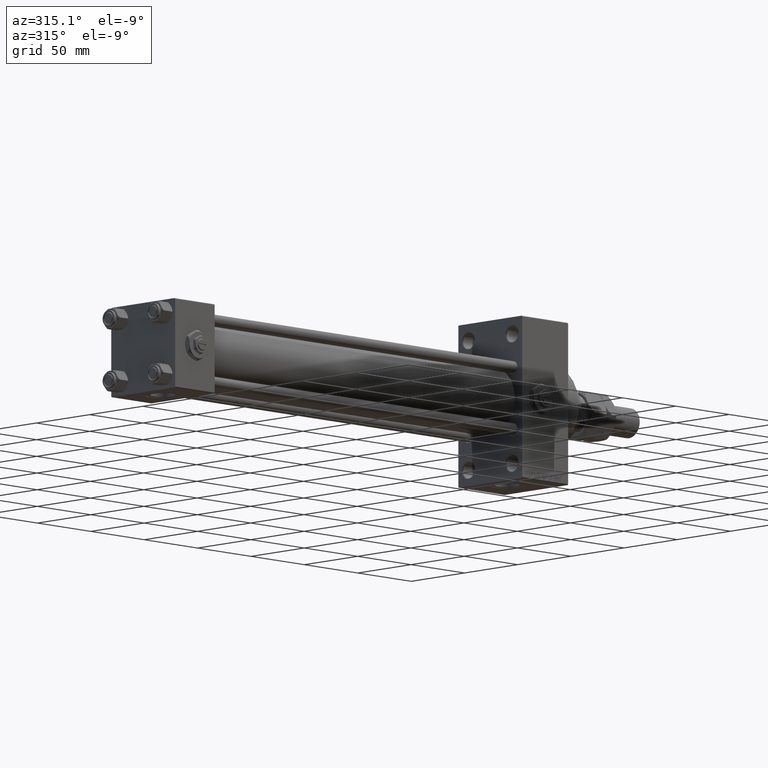
[diagram: clean part render]
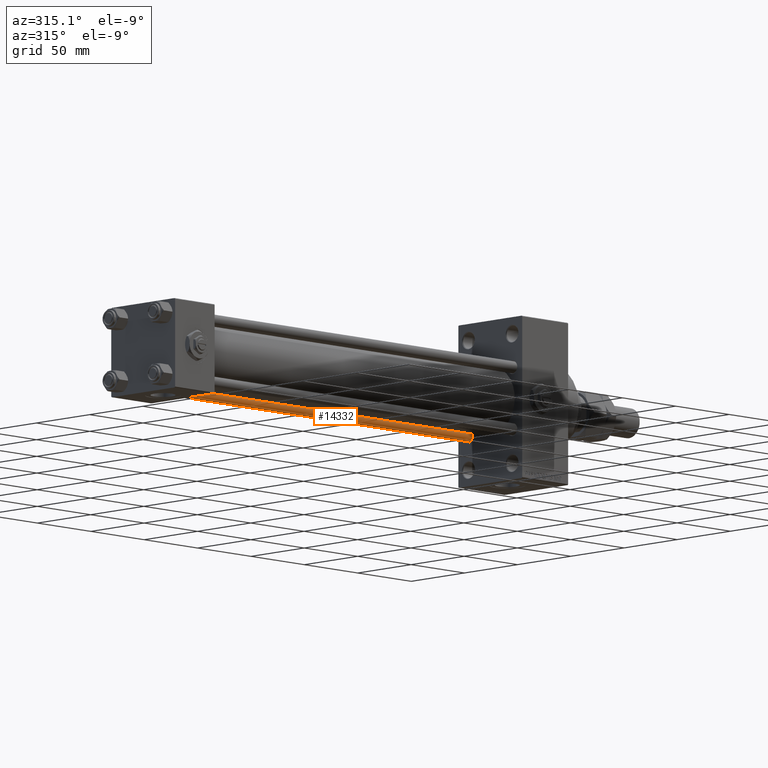
[diagram: same view with one face highlighted and labeled with its STEP entity id]
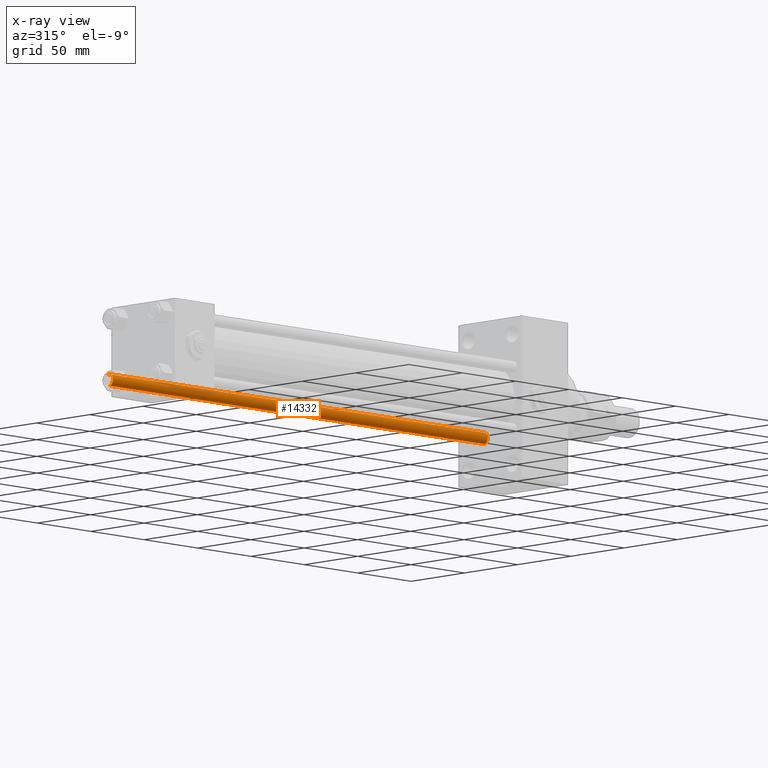
[diagram: x-ray of the same camera — body ghosted, the highlighted face saturated]
A machine part, auxiliary view. The second image highlights one B-rep face of the part: STEP entity #14332.
The next image is the same camera in x-ray: the body ghosted, the highlighted face saturated — about 6% of this face is hidden behind the body in this view.
In plain terms, the highlighted cylindrical surface (edge-blend (fillet) strip) has radius 4 mm, axis along (1, -0, 0).
Its self-contained STEP definition (entity closure, byte-faithful):
#6041 = CARTESIAN_POINT ( 'NONE',  ( -4.000000000000000000, 0.000000000000000000, 0.5000000000000004441 ) ) ;
#6139 = DIRECTION ( 'NONE',  ( -1.000000000000000000, 0.000000000000000000, 0.000000000000000000 ) ) ;
#7825 = CARTESIAN_POINT ( 'NONE',  ( 4.000000000000000000, 4.898587196589412829E-16, 0.5000000000000004441 ) ) ;
#7914 = DIRECTION ( 'NONE',  ( 1.000000000000000000, 0.000000000000000000, 0.000000000000000000 ) ) ;
#9074 = AXIS2_PLACEMENT_3D ( 'NONE', #37041, #13124, #6139 ) ;
#9806 = DIRECTION ( 'NONE',  ( -0.000000000000000000, -0.000000000000000000, -1.000000000000000000 ) ) ;
#11294 = EDGE_CURVE ( 'NONE', #16237, #45612, #21893, .T. ) ;
#13124 = DIRECTION ( 'NONE',  ( -0.000000000000000000, -0.000000000000000000, -1.000000000000000000 ) ) ;
#14332 = ADVANCED_FACE ( 'NONE', ( #29312 ), #21598, .T. ) ;
#15886 = LINE ( 'NONE', #43410, #25463 ) ;
#16237 = VERTEX_POINT ( 'NONE', #38001 ) ;
#17432 = CARTESIAN_POINT ( 'NONE',  ( 4.000000000000000000, 4.898587196589412829E-16, 351.5000000000000000 ) ) ;
#18242 = VERTEX_POINT ( 'NONE', #17432 ) ;
#19765 = DIRECTION ( 'NONE',  ( 0.000000000000000000, 0.000000000000000000, -1.000000000000000000 ) ) ;
#19945 = VERTEX_POINT ( 'NONE', #7825 ) ;
#21034 = DIRECTION ( 'NONE',  ( 1.000000000000000000, 0.000000000000000000, 0.000000000000000000 ) ) ;
#21598 = CYLINDRICAL_SURFACE ( 'NONE', #9074, 4.000000000000000000 ) ;
#21893 = LINE ( 'NONE', #30114, #31106 ) ;
#22504 = EDGE_CURVE ( 'NONE', #18242, #16237, #33565, .T. ) ;
#22914 = ORIENTED_EDGE ( 'NONE', *, *, #22504, .T. ) ;
#25463 = VECTOR ( 'NONE', #39038, 1000.000000000000000 ) ;
#26445 = ORIENTED_EDGE ( 'NONE', *, *, #26612, .F. ) ;
#26612 = EDGE_CURVE ( 'NONE', #18242, #19945, #15886, .T. ) ;
#26797 = ORIENTED_EDGE ( 'NONE', *, *, #27339, .T. ) ;
#27339 = EDGE_CURVE ( 'NONE', #45612, #19945, #36189, .T. ) ;
#28799 = AXIS2_PLACEMENT_3D ( 'NONE', #28998, #32868, #21034 ) ;
#28998 = CARTESIAN_POINT ( 'NONE',  ( 0.000000000000000000, 0.000000000000000000, 0.5000000000000004441 ) ) ;
#29312 = FACE_OUTER_BOUND ( 'NONE', #39458, .T. ) ;
#30114 = CARTESIAN_POINT ( 'NONE',  ( -4.000000000000000000, 0.000000000000000000, 352.0000000000000000 ) ) ;
#31081 = AXIS2_PLACEMENT_3D ( 'NONE', #39825, #19765, #7914 ) ;
#31106 = VECTOR ( 'NONE', #9806, 1000.000000000000000 ) ;
#32868 = DIRECTION ( 'NONE',  ( -0.000000000000000000, -0.000000000000000000, 1.000000000000000000 ) ) ;
#33565 = CIRCLE ( 'NONE', #31081, 4.000000000000000000 ) ;
#36189 = CIRCLE ( 'NONE', #28799, 4.000000000000000000 ) ;
#37041 = CARTESIAN_POINT ( 'NONE',  ( 0.000000000000000000, 0.000000000000000000, 352.0000000000000000 ) ) ;
#38001 = CARTESIAN_POINT ( 'NONE',  ( -4.000000000000000000, 0.000000000000000000, 351.5000000000000000 ) ) ;
#39038 = DIRECTION ( 'NONE',  ( -0.000000000000000000, -0.000000000000000000, -1.000000000000000000 ) ) ;
#39458 = EDGE_LOOP ( 'NONE', ( #26445, #22914, #39559, #26797 ) ) ;
#39559 = ORIENTED_EDGE ( 'NONE', *, *, #11294, .T. ) ;
#39825 = CARTESIAN_POINT ( 'NONE',  ( 0.000000000000000000, 0.000000000000000000, 351.5000000000000000 ) ) ;
#43410 = CARTESIAN_POINT ( 'NONE',  ( 4.000000000000000000, 4.898587196589412829E-16, 352.0000000000000000 ) ) ;
#45612 = VERTEX_POINT ( 'NONE', #6041 ) ;